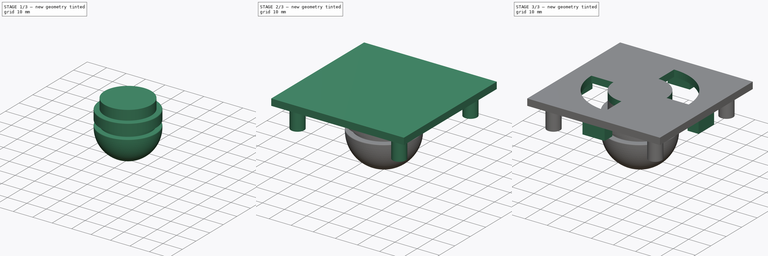
[diagram: build sequence overview — one tinted view per stage of 3, left to right]
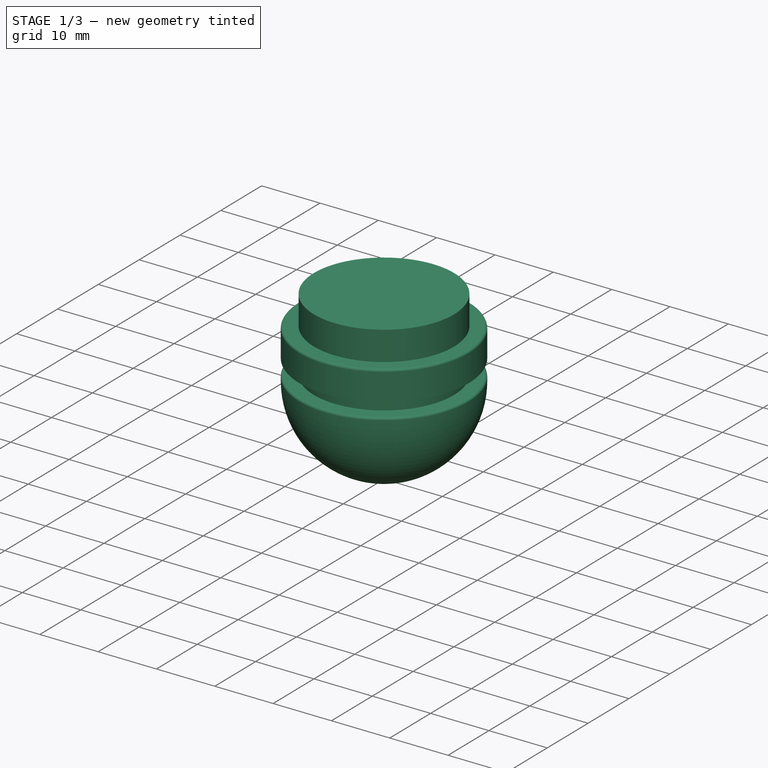
[diagram: stage 1 of 3 — iso view after this stage's code; geometry added in this stage tinted green]
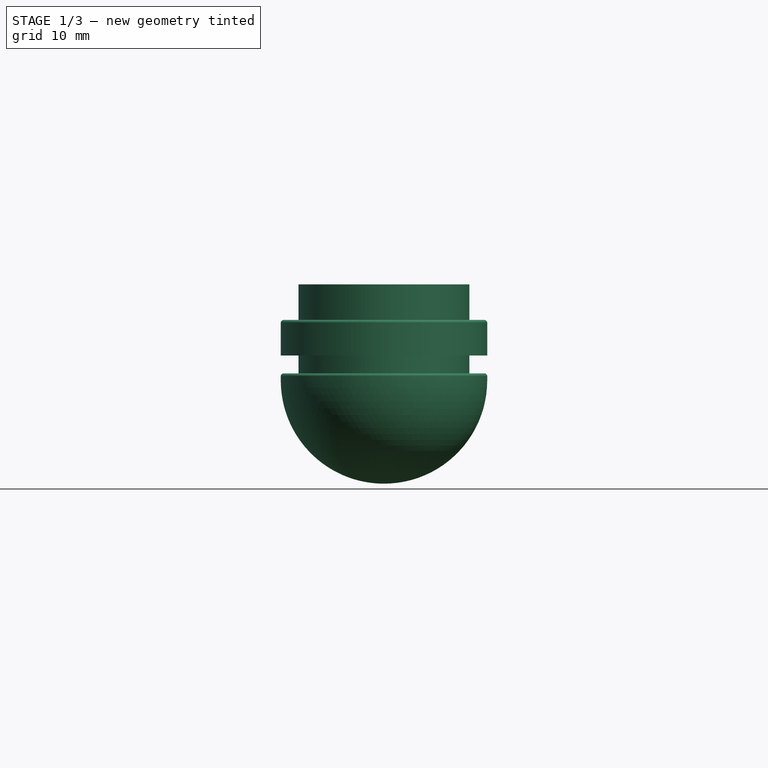
[diagram: stage 1 of 3 — front view after this stage's code; geometry added in this stage tinted green]
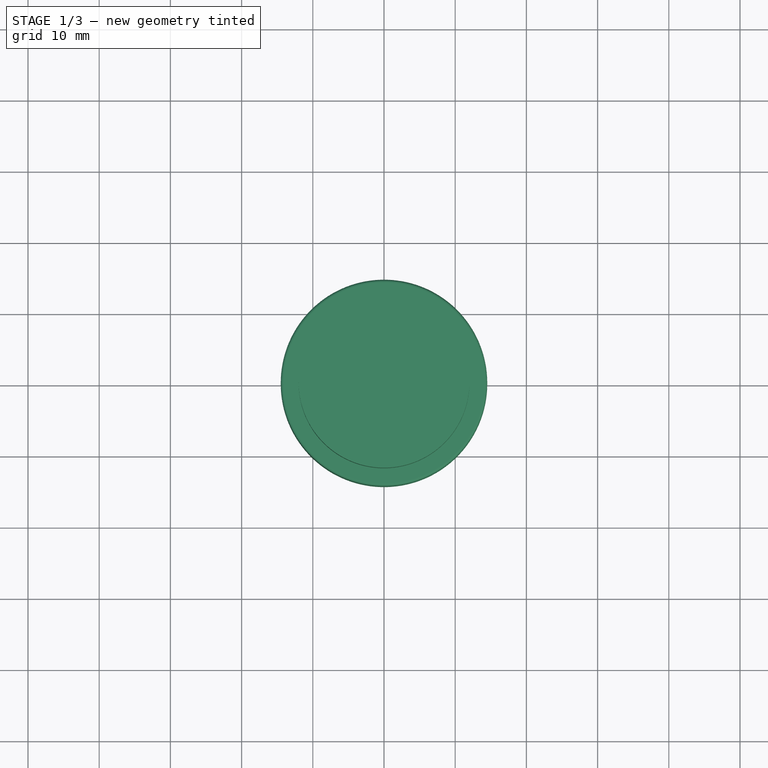
[diagram: stage 1 of 3 — top view after this stage's code; geometry added in this stage tinted green]
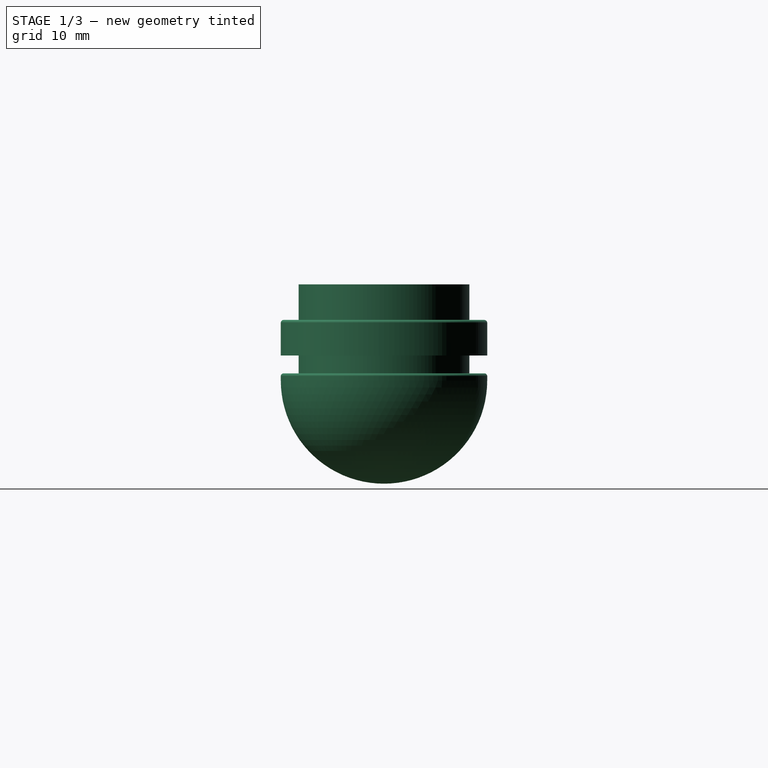
[diagram: stage 1 of 3 — right view after this stage's code; geometry added in this stage tinted green]
FCSTD DOCUMENT  (FreeCAD 2022.118R30769 (Git))
Label: Silicone-Mold_v4-B_35mm
License: All rights reserved
LicenseURL: http://en.wikipedia.org/wiki/All_rights_reserved
objects: Sketcher::SketchObject×5, PartDesign::Pad×3, PartDesign::Revolution×1, PartDesign::Fillet×1, PartDesign::Pocket×1, PartDesign::Body×1
note: 24 computed .brp shape members not serialized (recipe doc carries the construction recipe); baked Part::Feature solids carry a one-line shape summary decoded from their .brp

FEATURE [Sketcher::SketchObject] Sketch
  FullyConstrained = true
  MapMode = 5
  Placement = pos=(0,0,0) rot=(1,0,0;1.5708rad)
  Support = -> [XZ_Plane]
  TreeRank = 11
  sketch-geometry (11):
    g0: LineSegment StartX=-5.4e-15 StartY=0 StartZ=0 EndX=-5.4e-15 EndY=-28 EndZ=0
    g1: ArcOfCircle CenterX=-2.7e-15 CenterY=-13.5 CenterZ=0 NormalX=0 NormalY=0 NormalZ=1 AngleXU=0 Radius=14.5 StartAngle=3.14159 EndAngle=4.71239
    g2: LineSegment StartX=-14.5 StartY=-13.5 StartZ=0 EndX=-14.5 EndY=-12.5 EndZ=0
    g3: LineSegment [constr] StartX=-14.5 StartY=-13.5 StartZ=0 EndX=0 EndY=-13.5 EndZ=0
    g4: LineSegment StartX=-14.5 StartY=-12.5 StartZ=0 EndX=-12 EndY=-12.5 EndZ=0
    g5: LineSegment StartX=-12 StartY=-12.5 StartZ=0 EndX=-12 EndY=-10 EndZ=0
    g6: LineSegment StartX=-12 StartY=-10 StartZ=0 EndX=-14.5 EndY=-10 EndZ=0
    g7: LineSegment StartX=-14.5 StartY=-10 StartZ=0 EndX=-14.5 EndY=-5 EndZ=0
    g8: LineSegment StartX=-14.5 StartY=-5 StartZ=0 EndX=-12 EndY=-5 EndZ=0
    g9: LineSegment StartX=-12 StartY=-5 StartZ=0 EndX=-12 EndY=0 EndZ=0
    g10: LineSegment StartX=-12 StartY=0 StartZ=0 EndX=-5.3e-15 EndY=0 EndZ=0
  constraints (34):
    c: Coincident(g0,g-1)
    c: Vertical(g0)
    c: Distance(g0) = 28
    c: Coincident(g1,g0)
    c: Distance(g1,g0) = 14.5
    c: Vertical(g2)
    c: Tangent(g2,g1) = 1.5708
    c: Coincident(g3,g1)
    c: PointOnObject(g3,g0)
    c: Horizontal(g3)
    c: Distance(g0,g3) = 14.5
    c: Coincident(g4,g2)
    c: Horizontal(g4)
    c: Coincident(g5,g4)
    c: Vertical(g5)
    c: Horizontal(g6)
    c: Coincident(g8,g7)
    c: Horizontal(g8)
    c: Coincident(g9,g8)
    c: PointOnObject(g9,g-1)
    c: Coincident(g10,g9)
    c: Coincident(g10,g0)
    c: Vertical(g7)
    c: Vertical(g9)
    c: Vertical(g5,g8)
    c: Coincident(g5,g6)
    c: Coincident(g6,g7)
    c: Distance(g9) = 5
    c: Distance(g7) = 5
    c: Distance(g5) = 2.5
    c: Distance(g8) = 2.5
    c: Equal(g8,g4)
    c: Distance(g8,g4) = 7.5
    c: Distance(g2,g1) = 1
FEATURE [PartDesign::Revolution] Revolution  label="Champignon"
  AddSubType = 0
  Angle = 360
  Axis = (0,-2e-16,1)
  Base = (0,0,0)
  ClaimChildren = false
  Fit = 0
  FitJoin = 0
  InnerFit = 0
  InnerFitJoin = 0
  Linearize = true
  NewSolid = false
  Placement = pos=(0,0,0) rot=(1,0,0;1.5708rad)
  Profile = -> Sketch
  ReferenceAxis = -> Sketch [V_Axis]
  Suppress = false
  TreeRank = 12
  _ProfileBasedVersion = 1
FEATURE [PartDesign::Fillet] Fillet
  AddSubType = 0
  Base = -> Revolution [Edge10,Edge4]
  BaseFeature = -> Revolution
  NewSolid = false
  Placement = pos=(0,0,0) rot=(1,0,0;1.5708rad)
  Radius = 0.4
  SupportTransform = false
  Suppress = false
  TreeRank = 13
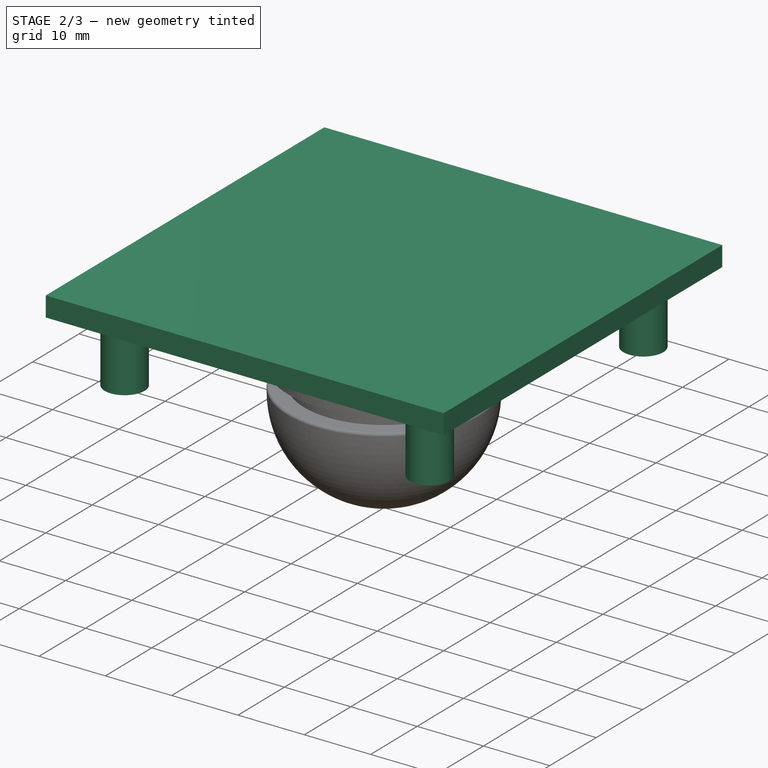
[diagram: stage 2 of 3 — iso view after this stage's code; geometry added in this stage tinted green]
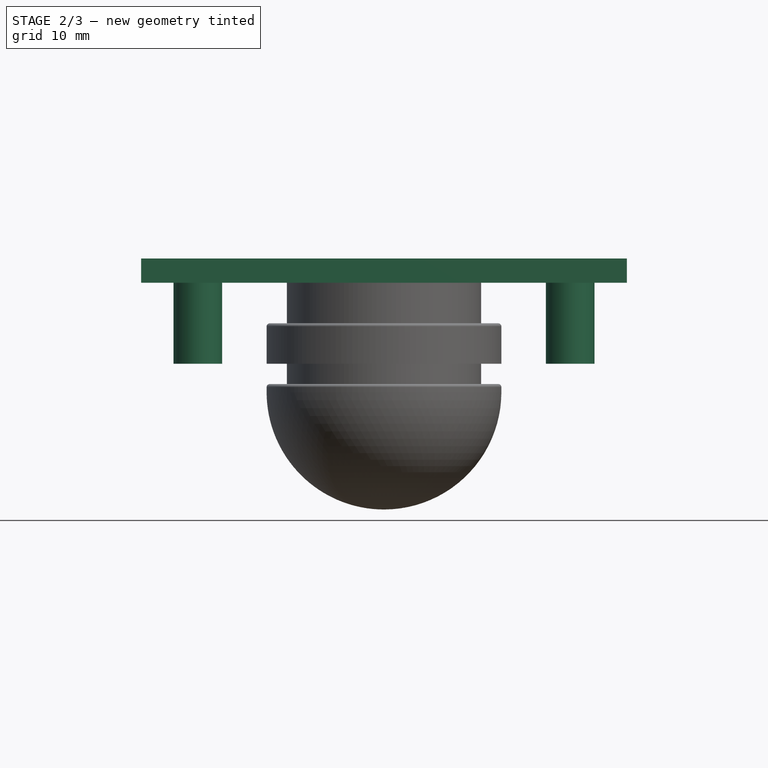
[diagram: stage 2 of 3 — front view after this stage's code; geometry added in this stage tinted green]
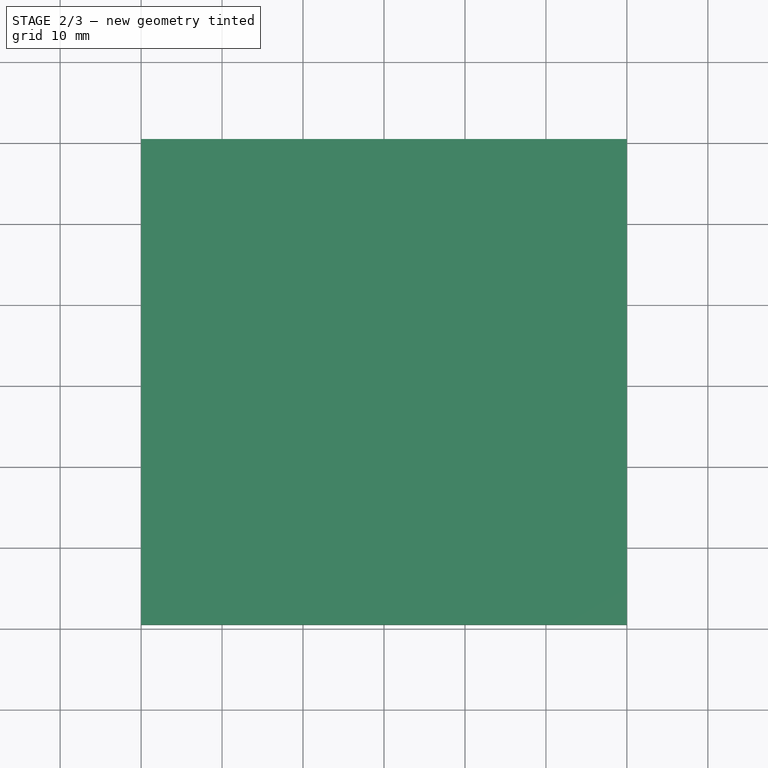
[diagram: stage 2 of 3 — top view after this stage's code; geometry added in this stage tinted green]
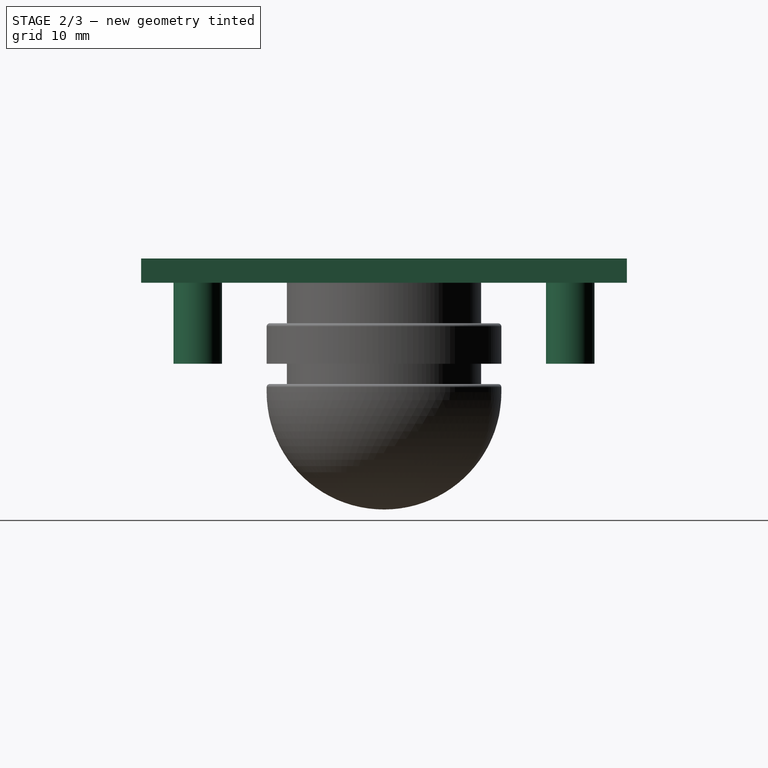
[diagram: stage 2 of 3 — right view after this stage's code; geometry added in this stage tinted green]
FEATURE [Sketcher::SketchObject] Sketch001
  FullyConstrained = true
  MapMode = 5
  Placement = pos=(0,0,0) rot=(0,0,1;3.14159rad)
  Support = -> [Fillet]
  TreeRank = 14
  sketch-geometry (5):
    g0: LineSegment StartX=-30 StartY=-30 StartZ=0 EndX=-30 EndY=30 EndZ=0
    g1: LineSegment StartX=-30 StartY=30 StartZ=0 EndX=30 EndY=30 EndZ=0
    g2: LineSegment StartX=30 StartY=30 StartZ=0 EndX=30 EndY=-30 EndZ=0
    g3: LineSegment StartX=30 StartY=-30 StartZ=0 EndX=-30 EndY=-30 EndZ=0
    g4: GeomPoint [constr] X=0 Y=0 Z=0
  constraints (12):
    c: Coincident(g0,g1)
    c: Coincident(g1,g2)
    c: Coincident(g2,g3)
    c: Coincident(g3,g0)
    c: Horizontal(g1)
    c: Horizontal(g3)
    c: Vertical(g0)
    c: Vertical(g2)
    c: Symmetric(g1,g0,g4)
    c: Coincident(g4,g-1)
    c: Distance(g1) = 60
    c: Equal(g1,g0)
FEATURE [PartDesign::Pad] Pad  label="Plaque"
  AddSubType = 0
  AlongSketchNormal = false
  BaseFeature = -> Fillet
  CheckUpToFaceLimits = true
  ClaimChildren = false
  Direction = (0,-2e-16,1)
  Fit = 0
  FitJoin = 0
  InnerFit = 0
  InnerFitJoin = 0
  InnerTaperAngle = 0
  InnerTaperAngleRev = 0
  Length = 3
  Length2 = 100
  Linearize = true
  NewSolid = false
  Placement = pos=(0,0,0) rot=(1,0,0;1.5708rad)
  Profile = -> Sketch001
  Suppress = false
  TreeRank = 15
  Type = 0
  _ProfileBasedVersion = 1
FEATURE [Sketcher::SketchObject] Sketch002
  ExternalGeometry = -> [Pad]
  FullyConstrained = true
  MapMode = 5
  Placement = pos=(0,0,0) rot=(1,0,0;3.14159rad)
  Support = -> [Pad]
  TreeRank = 16
  sketch-geometry (8):
    g0: Circle CenterX=-23 CenterY=23 CenterZ=0 NormalX=0 NormalY=0 NormalZ=1 AngleXU=0 Radius=3
    g1: Circle CenterX=-23 CenterY=23 CenterZ=0 NormalX=0 NormalY=0 NormalZ=1 AngleXU=0 Radius=1.5
    g2: Circle CenterX=23 CenterY=23 CenterZ=0 NormalX=0 NormalY=0 NormalZ=1 AngleXU=0 Radius=3
    g3: Circle CenterX=23 CenterY=23 CenterZ=0 NormalX=0 NormalY=0 NormalZ=1 AngleXU=0 Radius=1.5
    g4: Circle CenterX=23 CenterY=-23 CenterZ=0 NormalX=0 NormalY=0 NormalZ=1 AngleXU=0 Radius=3
    g5: Circle CenterX=23 CenterY=-23 CenterZ=0 NormalX=0 NormalY=0 NormalZ=1 AngleXU=0 Radius=1.5
    g6: Circle CenterX=-23 CenterY=-23 CenterZ=0 NormalX=0 NormalY=0 NormalZ=1 AngleXU=0 Radius=1.5
    g7: Circle CenterX=-23 CenterY=-23 CenterZ=0 NormalX=0 NormalY=0 NormalZ=1 AngleXU=0 Radius=3
  constraints (20):
    c: Radius(g0) = 3
    c: Distance(g0,g-3) = 7
    c: Distance(g0,g-4) = 7
    c: Coincident(g1,g0)
    c: Radius(g1) = 1.5
    c: Coincident(g3,g2)
    c: Radius(g3) = 1.5
    c: Radius(g2) = 3
    c: Horizontal(g0,g2)
    c: Distance(g2,g-5) = 7
    c: Coincident(g5,g4)
    c: Radius(g5) = 1.5
    c: Radius(g4) = 3
    c: Vertical(g2,g4)
    c: Distance(g4,g-6) = 7
    c: Coincident(g7,g6)
    c: Radius(g6) = 1.5
    c: Radius(g7) = 3
    c: Vertical(g0,g6)
    c: Horizontal(g4,g6)
FEATURE [PartDesign::Pad] Pad001  label="Guide Support"
  AddSubType = 0
  AlongSketchNormal = false
  BaseFeature = -> Pad
  CheckUpToFaceLimits = true
  ClaimChildren = false
  Direction = (0,2e-16,-1)
  Fit = 0
  FitJoin = 0
  InnerFit = 0
  InnerFitJoin = 0
  InnerTaperAngle = 0
  InnerTaperAngleRev = 0
  Length = 10
  Length2 = 100
  Linearize = true
  NewSolid = false
  Placement = pos=(0,0,0) rot=(1,0,0;1.5708rad)
  Profile = -> Sketch002
  Suppress = false
  TreeRank = 17
  Type = 0
  _ProfileBasedVersion = 1
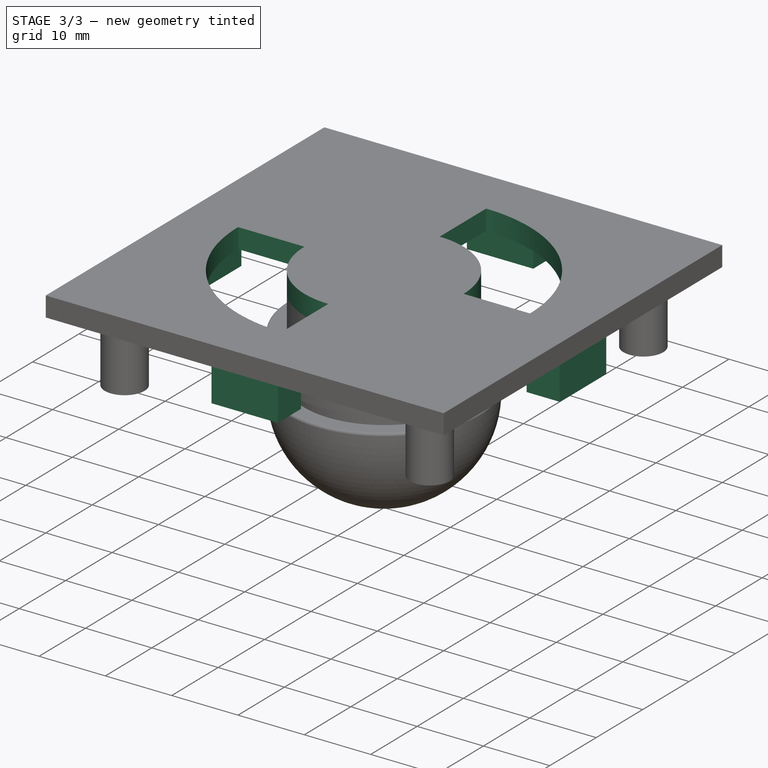
[diagram: stage 3 of 3 — iso view after this stage's code; geometry added in this stage tinted green]
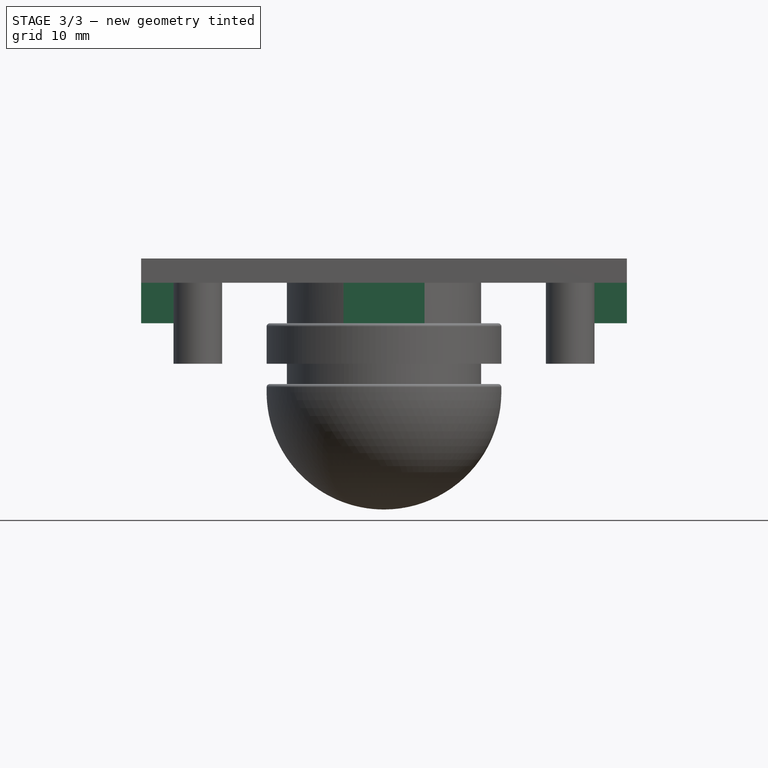
[diagram: stage 3 of 3 — front view after this stage's code; geometry added in this stage tinted green]
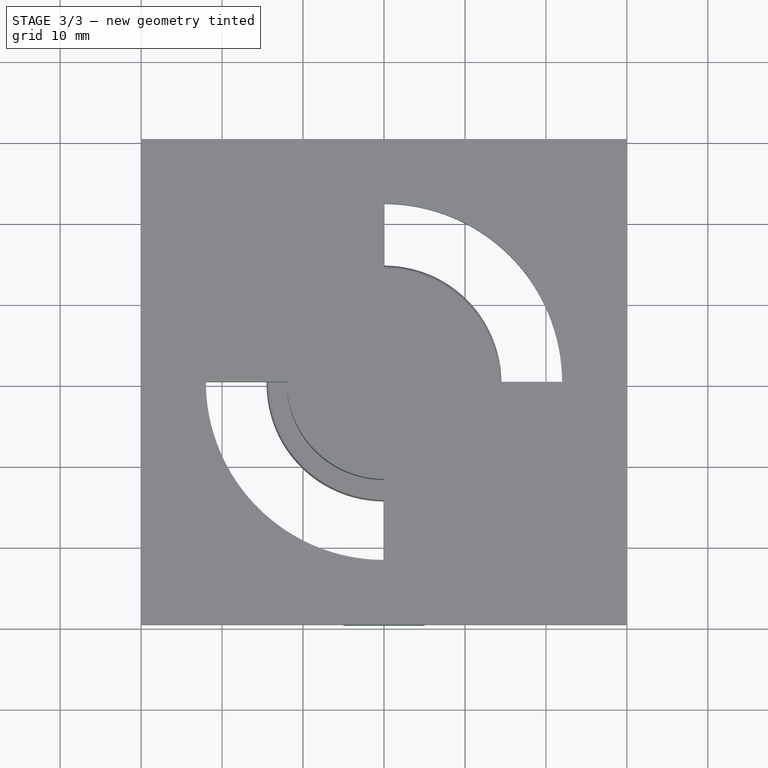
[diagram: stage 3 of 3 — top view after this stage's code; geometry added in this stage tinted green]
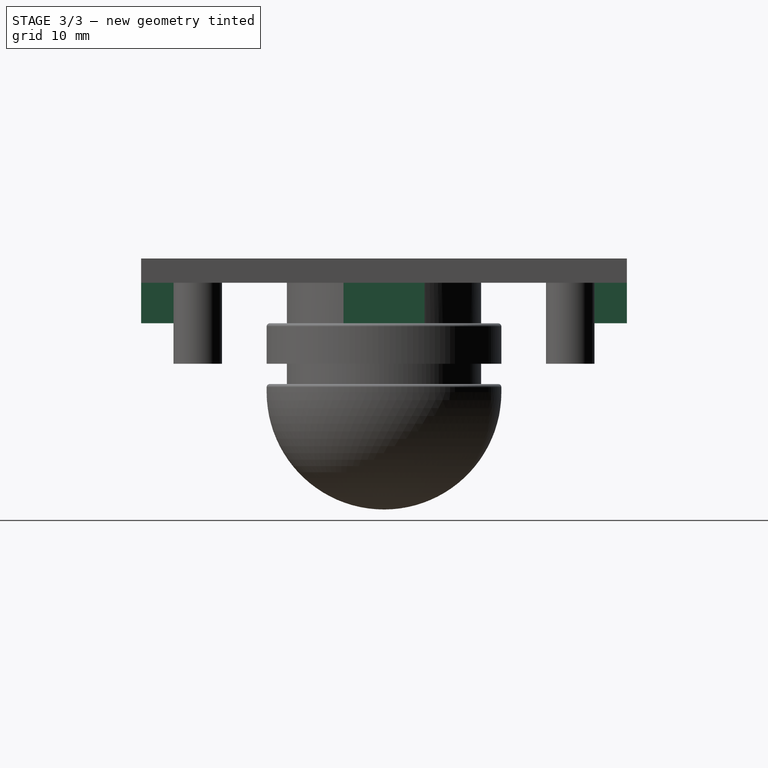
[diagram: stage 3 of 3 — right view after this stage's code; geometry added in this stage tinted green]
FEATURE [Sketcher::SketchObject] Sketch003
  ExternalGeometry = -> [Pad001]
  FullyConstrained = true
  MapMode = 5
  Placement = pos=(0,0,0) rot=(1,0,0;3.14159rad)
  Support = -> [Pad001]
  TreeRank = 18
  sketch-geometry (16):
    g0: LineSegment StartX=-5 StartY=30 StartZ=0 EndX=5 EndY=30 EndZ=0
    g1: LineSegment StartX=5 StartY=30 StartZ=0 EndX=5 EndY=25 EndZ=0
    g2: LineSegment StartX=5 StartY=25 StartZ=0 EndX=-5 EndY=25 EndZ=0
    g3: LineSegment StartX=-5 StartY=25 StartZ=0 EndX=-5 EndY=30 EndZ=0
    g4: LineSegment StartX=30 StartY=-5 StartZ=0 EndX=25 EndY=-5 EndZ=0
    g5: LineSegment StartX=25 StartY=-5 StartZ=0 EndX=25 EndY=5 EndZ=0
    g6: LineSegment StartX=25 StartY=5 StartZ=0 EndX=30 EndY=5 EndZ=0
    g7: LineSegment StartX=30 StartY=5 StartZ=0 EndX=30 EndY=-5 EndZ=0
    g8: LineSegment StartX=5 StartY=-30 StartZ=0 EndX=-5 EndY=-30 EndZ=0
    g9: LineSegment StartX=-5 StartY=-30 StartZ=0 EndX=-5 EndY=-25 EndZ=0
    g10: LineSegment StartX=-5 StartY=-25 StartZ=0 EndX=5 EndY=-25 EndZ=0
    g11: LineSegment StartX=5 StartY=-25 StartZ=0 EndX=5 EndY=-30 EndZ=0
    g12: LineSegment StartX=-30 StartY=5 StartZ=0 EndX=-25 EndY=5 EndZ=0
    g13: LineSegment StartX=-25 StartY=5 StartZ=0 EndX=-25 EndY=-5 EndZ=0
    g14: LineSegment StartX=-25 StartY=-5 StartZ=0 EndX=-30 EndY=-5 EndZ=0
    g15: LineSegment StartX=-30 StartY=-5 StartZ=0 EndX=-30 EndY=5 EndZ=0
  constraints (48):
    c: Coincident(g0,g1)
    c: Coincident(g1,g2)
    c: Coincident(g2,g3)
    c: Coincident(g3,g0)
    c: Horizontal(g0)
    c: Horizontal(g2)
    c: Vertical(g1)
    c: Vertical(g3)
    c: PointOnObject(g0,g-3)
    c: Distance(g0) = 10
    c: Distance(g1) = 5
    c: Distance(g0,g-4) = 25
    c: Coincident(g4,g5)
    c: Coincident(g5,g6)
    c: Coincident(g6,g7)
    c: Coincident(g7,g4)
    c: Horizontal(g4)
    c: Horizontal(g6)
    c: Vertical(g5)
    c: Vertical(g7)
    c: PointOnObject(g4,g-5)
    c: Distance(g6) = 5
    c: Distance(g7) = 10
    c: Distance(g-5,g6) = 25
    c: Coincident(g8,g9)
    c: Coincident(g9,g10)
    c: Coincident(g10,g11)
    c: Coincident(g11,g8)
    c: Horizontal(g8)
    c: Horizontal(g10)
    c: Vertical(g9)
    c: Vertical(g11)
    c: PointOnObject(g8,g-6)
    c: Distance(g8) = 10
    c: Distance(g11) = 5
    c: Vertical(g2,g9)
    c: Coincident(g12,g13)
    c: Coincident(g13,g14)
    c: Coincident(g14,g15)
    c: Coincident(g15,g12)
    c: Horizontal(g12)
    c: Horizontal(g14)
    c: Vertical(g13)
    c: Vertical(g15)
    c: PointOnObject(g12,g-4)
    c: Distance(g15) = 10
    c: Distance(g12) = 5
    c: Horizontal(g12,g5)
FEATURE [PartDesign::Pad] Pad002
  AddSubType = 0
  AlongSketchNormal = false
  BaseFeature = -> Pad001
  CheckUpToFaceLimits = true
  ClaimChildren = false
  Direction = (0,2e-16,-1)
  Fit = 0
  FitJoin = 0
  InnerFit = 0
  InnerFitJoin = 0
  InnerTaperAngle = 0
  InnerTaperAngleRev = 0
  Length = 5
  Length2 = 100
  Linearize = true
  NewSolid = false
  Placement = pos=(0,0,0) rot=(1,0,0;1.5708rad)
  Profile = -> Sketch003
  Suppress = false
  TreeRank = 19
  Type = 0
  _ProfileBasedVersion = 1
FEATURE [Sketcher::SketchObject] Sketch004  label="Trou débordement"
  ExternalGeometry = -> [Pad002]
  FullyConstrained = true
  MapMode = 5
  Placement = pos=(0,-7e-16,3) rot=(0,0,1;3.14159rad)
  Support = -> [Pad002]
  TreeRank = 20
  sketch-geometry (10):
    g0: LineSegment [constr] StartX=1.3e-15 StartY=12 StartZ=0 EndX=1.3e-15 EndY=-12 EndZ=0
    g1: LineSegment [constr] StartX=12 StartY=1.5e-15 StartZ=0 EndX=-12 EndY=1.5e-15 EndZ=0
    g2: ArcOfCircle CenterX=0 CenterY=0 CenterZ=0 NormalX=0 NormalY=0 NormalZ=1 AngleXU=0 Radius=12 StartAngle=0 EndAngle=1.5708
    g3: ArcOfCircle CenterX=0 CenterY=0 CenterZ=0 NormalX=0 NormalY=0 NormalZ=1 AngleXU=0 Radius=12 StartAngle=3.14159 EndAngle=4.71239
    g4: LineSegment StartX=1.3e-15 StartY=12 StartZ=0 EndX=1.3e-15 EndY=22 EndZ=0
    g5: LineSegment StartX=12 StartY=1.5e-15 StartZ=0 EndX=22 EndY=1.5e-15 EndZ=0
    g6: LineSegment StartX=1.3e-15 StartY=-12 StartZ=0 EndX=-4e-15 EndY=-22 EndZ=0
    g7: LineSegment StartX=-12 StartY=1.5e-15 StartZ=0 EndX=-22 EndY=2.7e-15 EndZ=0
    g8: ArcOfCircle CenterX=0 CenterY=0 CenterZ=0 NormalX=0 NormalY=0 NormalZ=1 AngleXU=0 Radius=22 StartAngle=0 EndAngle=1.5708
    g9: ArcOfCircle CenterX=0 CenterY=0 CenterZ=0 NormalX=0 NormalY=0 NormalZ=1 AngleXU=0 Radius=22 StartAngle=3.14159 EndAngle=4.71239
  constraints (29):
    c: PointOnObject(g0,g-3)
    c: PointOnObject(g0,g-3)
    c: Vertical(g0)
    c: Horizontal(g1)
    c: Coincident(g2,g-3)
    c: Coincident(g2,g0)
    c: Coincident(g2,g1)
    c: Coincident(g3,g2)
    c: Coincident(g3,g1)
    c: Coincident(g3,g0)
    c: Coincident(g4,g2)
    c: PointOnObject(g4,g-2)
    c: Vertical(g4)
    c: Coincident(g5,g2)
    c: PointOnObject(g5,g-1)
    c: Horizontal(g5)
    c: Coincident(g6,g3)
    c: PointOnObject(g6,g-2)
    c: Coincident(g7,g3)
    c: PointOnObject(g7,g-1)
    c: Distance(g4) = 10
    c: Equal(g4,g5)
    c: Equal(g5,g6)
    c: Coincident(g8,g2)
    c: Coincident(g8,g4)
    c: PointOnObject(g8,g5)
    c: Coincident(g9,g2)
    c: Coincident(g9,g7)
    c: Coincident(g9,g6)
FEATURE [PartDesign::Pocket] Pocket  label="Calle"
  AddSubType = 1
  BaseFeature = -> Pad002
  CheckUpToFaceLimits = true
  ClaimChildren = false
  Fit = 0
  FitJoin = 0
  InnerFit = 0
  InnerFitJoin = 0
  InnerTaperAngle = 0
  InnerTaperAngleRev = 0
  Length = 0
  Length2 = 100
  Linearize = true
  NewSolid = false
  Placement = pos=(0,0,0) rot=(1,0,0;1.5708rad)
  Profile = -> Sketch004
  Suppress = false
  TreeRank = 21
  Type = 3
  UpToFace = -> Pad002 [Face4]
  _ProfileBasedVersion = 1
  _Version = 1
FEATURE [PartDesign::Body] Body
  AutoGroupSolids = false
  ExportMode = 0
  Group = -> [Sketch,Revolution,Fillet,Sketch001,Pad,Sketch002,Pad001,Sketch003,Pad002,Sketch004,Pocket]
  Origin = -> Origin
  Tip = -> Pocket
  TreeRank = 10
  _ExportChildren = -> [Revolution,Fillet,Pad,Pad001,Pad002,Pocket]
  _GroupVersion = 1
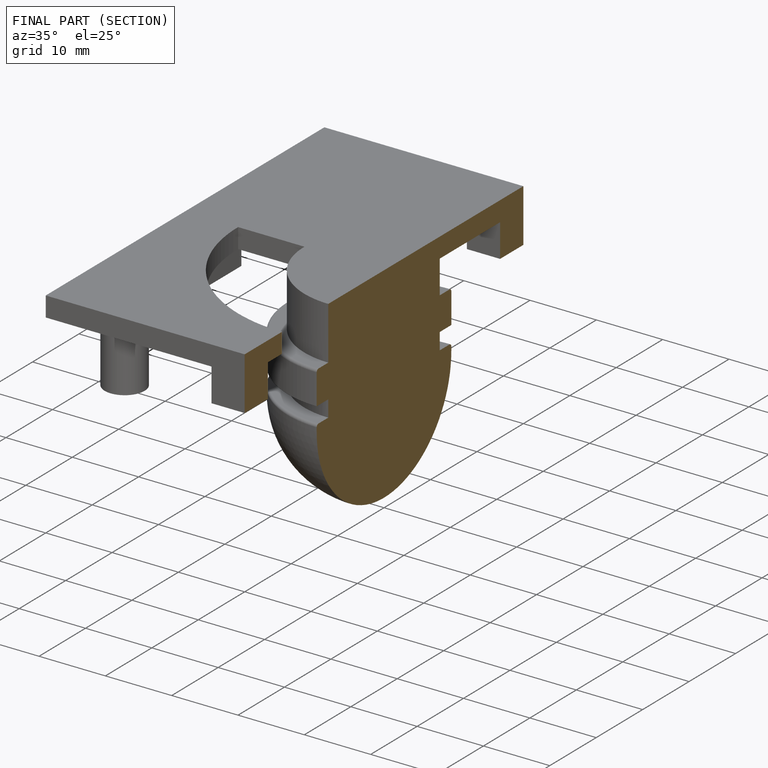
[diagram: finished part — half-section view (interior)]
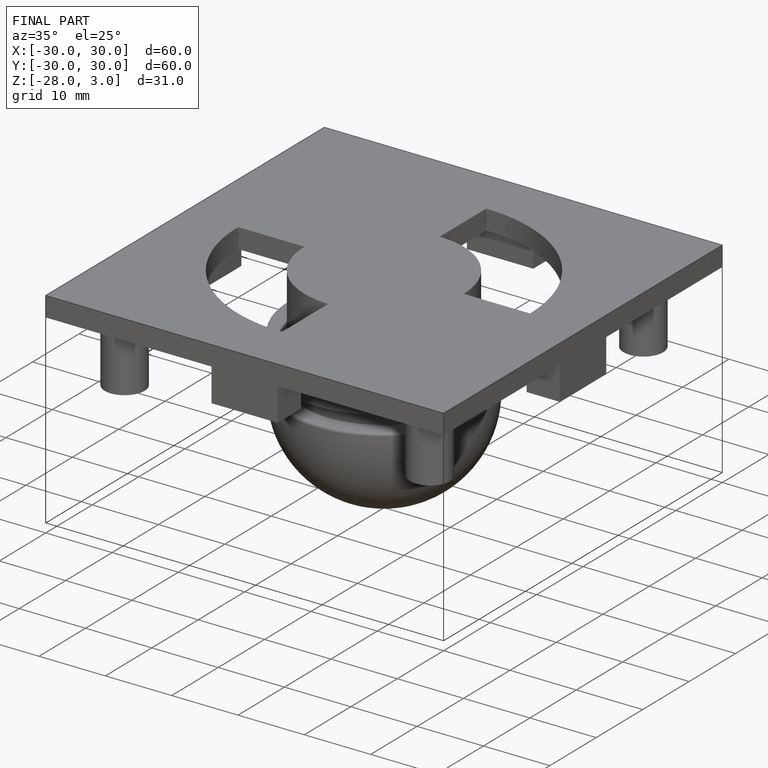
[diagram: finished part — iso view with bounding-box wireframe]
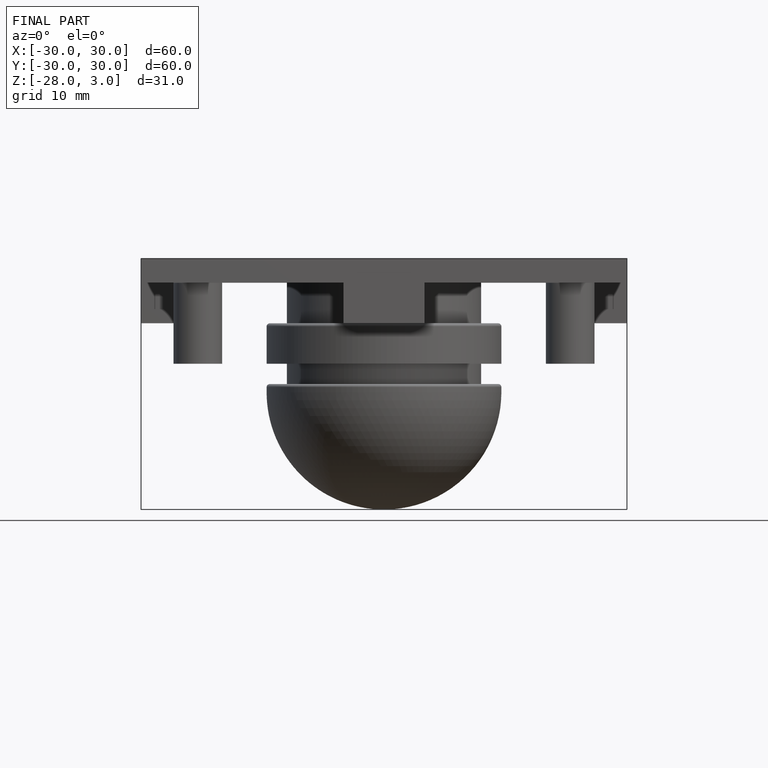
[diagram: finished part — front view with bounding-box wireframe]
